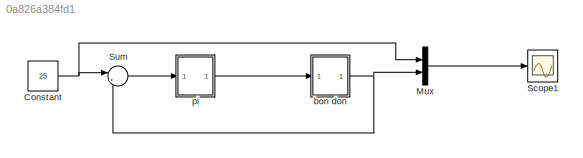
MODEL slx_0a826a384fd1
KIND model
CONFIG AbsTol = auto
CONFIG EnableMultiTasking = off
CONFIG FixedStep = 0.1
CONFIG MaxStep = auto
CONFIG MinStep = auto
CONFIG RelTol = 1e-3
CONFIG SampleTimeConstraint = Unconstrained
CONFIG Solver = FixedStepAuto
CONFIG SolverName = FixedStepAuto
CONFIG StartTime = 0.0
CONFIG StopTime = 10.0
BLOCK [Constant] Constant
  Value = 25
BLOCK [Mux] Mux
  DisplayOption = bar
  Inputs = 2
  Ports = [2, 1]
BLOCK [Scope] Scope1
  NumInputPorts = 1
  Ports = [1]
  ScopeSpecificationString = Simulink.scopes.TimeScopeBlockCfg('CurrentConfiguration', extmgr.ConfigurationSet(extmgr.Configuration('Core','General UI',true),extmgr.Configuration('Core','Source UI',true),extmgr.Configuration('Sources','WiredSimulink',true,'DataLoggingVariableName','ScopeData1'),extmgr.Configuration('Visuals','Time Domain',true,'SerializedDisplays',{struct('MinYLimReal','-3.125','MaxYLimReal','28.125','YLabelR...<+1442ch>
BLOCK [Sum] Sum
  IconShape = round
  InputSameDT = off
  Inputs = |+-
  OutDataTypeStr = Inherit: Inherit via internal rule
  Ports = [2, 1]
  SaturateOnIntegerOverflow = off
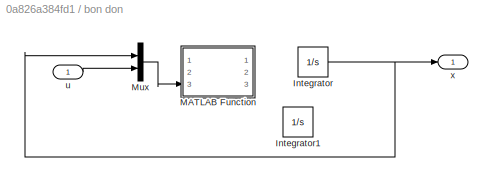
BLOCK [SubSystem] bon don
  Ports = [1, 1]
  RequestExecContextInheritance = off
  Variant = off
BLOCK [Integrator] bon don/Integrator
  InitialCondition = xdot
  Ports = [1, 1]
BLOCK [Integrator] bon don/Integrator1
  InitialCondition = xdot
  Ports = [1, 1]
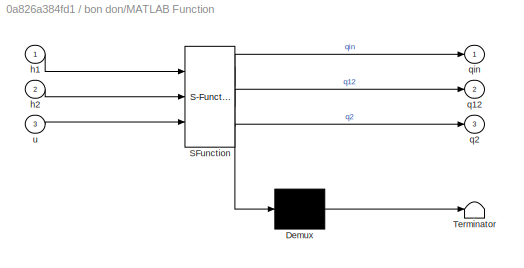
BLOCK [SubSystem] bon don/MATLAB Function
  ErrorFcn = Stateflow.Translate.translate
  PermitHierarchicalResolution = ExplicitOnly
  Ports = [3, 3]
  RequestExecContextInheritance = off
  SFBlockType = MATLAB Function
  TreatAsAtomicUnit = on
  Variant = off
BLOCK [Demux] bon don/MATLAB Function/ Demux 
  Outputs = 1
  Ports = [1, 1]
BLOCK [S-Function] bon don/MATLAB Function/ SFunction 
  EnableBusSupport = off
  FunctionName = sf_sfun
  PortCounts = [3 4]
  Ports = [3, 4]
  SFcnIsStateOwnerBlock = off
  SFunctionDeploymentMode = off
  Tag = Stateflow S-Function bai3 2
BLOCK [Terminator] bon don/MATLAB Function/ Terminator 
BLOCK [Inport] bon don/MATLAB Function/h1
  IconDisplay = Port number
BLOCK [Inport] bon don/MATLAB Function/h2
  IconDisplay = Port number
  Port = 2
BLOCK [Outport] bon don/MATLAB Function/q12
  IconDisplay = Port number
  Port = 2
BLOCK [Outport] bon don/MATLAB Function/q2
  IconDisplay = Port number
  Port = 3
BLOCK [Outport] bon don/MATLAB Function/qin
  IconDisplay = Port number
BLOCK [Inport] bon don/MATLAB Function/u
  IconDisplay = Port number
  Port = 3
BLOCK [Mux] bon don/Mux
  DisplayOption = bar
  Inputs = 2
  Ports = [2, 1]
BLOCK [Inport] bon don/u
  IconDisplay = Port number
BLOCK [Outport] bon don/x
  IconDisplay = Port number
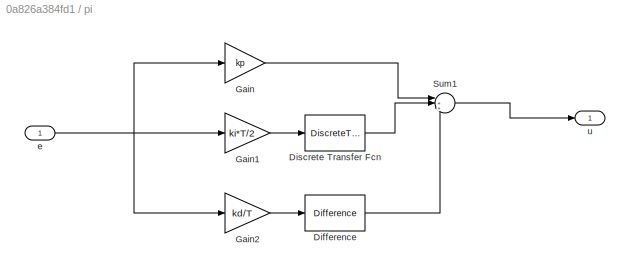
BLOCK [SubSystem] pi 
  Ports = [1, 1]
  RequestExecContextInheritance = off
  Variant = off
BLOCK [Reference] pi /Difference  REF=simulink/Discrete/Difference
  Ports = [1, 1]
  SourceBlock = simulink/Discrete/Difference
  SourceProductBaseCode = SL
  SourceProductName = Simulink
  SourceType = Difference
BLOCK [DiscreteTransferFcn] pi /Discrete Transfer Fcn
  Denominator = [1 -1]
  InputPortMap = u0
  Numerator = [1+1]
  Ports = [1, 1]
BLOCK [Gain] pi /Gain
  Gain = kp
  OutDataTypeStr = Inherit: Inherit via internal rule
  ParamDataTypeStr = Inherit: Inherit via internal rule
  SaturateOnIntegerOverflow = off
BLOCK [Gain] pi /Gain1
  Gain = ki*T/2
  OutDataTypeStr = Inherit: Inherit via internal rule
  ParamDataTypeStr = Inherit: Inherit via internal rule
  SaturateOnIntegerOverflow = off
BLOCK [Gain] pi /Gain2
  Gain = kd/T
  OutDataTypeStr = Inherit: Inherit via internal rule
  ParamDataTypeStr = Inherit: Inherit via internal rule
  SaturateOnIntegerOverflow = off
BLOCK [Sum] pi /Sum1
  IconShape = round
  InputSameDT = off
  Inputs = |+++
  OutDataTypeStr = Inherit: Inherit via internal rule
  Ports = [3, 1]
  SaturateOnIntegerOverflow = off
BLOCK [Inport] pi /e
  IconDisplay = Port number
BLOCK [Outport] pi /u
  IconDisplay = Port number
NET Constant:1 -> Mux:1, Sum:1
LINE Mux:1 -> Scope1:1
LINE Sum:1 -> pi :1
NET bon don/Integrator:1 -> bon don/Mux:1, bon don/x:1
LINE bon don/Mux:1 -> bon don/MATLAB Function:3
LINE bon don/u:1 -> bon don/Mux:2
NET bon don:1 -> Mux:2, Sum:2
LINE pi /Difference:1 -> pi /Sum1:3
LINE pi /Discrete Transfer Fcn:1 -> pi /Sum1:2
LINE pi /Gain1:1 -> pi /Discrete Transfer Fcn:1
LINE pi /Gain2:1 -> pi /Difference:1
LINE pi /Gain:1 -> pi /Sum1:1
LINE pi /Sum1:1 -> pi /u:1
NET pi /e:1 -> pi /Gain1:1, pi /Gain2:1, pi /Gain:1
LINE pi :1 -> bon don:1
note: NET lines group one-source signal fan-out (src -> all destinations, sorted); 1:1 wires keep LINE
CHART bon don/MATLAB Function states=1 transitions=1
  STATE_LABEL 'eML_blk_kernel()'
  STATE_LABEL 'SCRIPT:\nfunction [qin,q12,q2]=Flows(h1,h2,u)\n%#codegen\nC  = 0.6;  g  = 981;\nb1 = 1.1;  b2 = 1.0;  K = 41;\nqin  = K*u;\nq12  = C*b1*sign(h1-h2)*sqrt(2*g*abs(h1-h2));\nq2   = C*b2*sqrt(2*g*h2);\nend\n'
